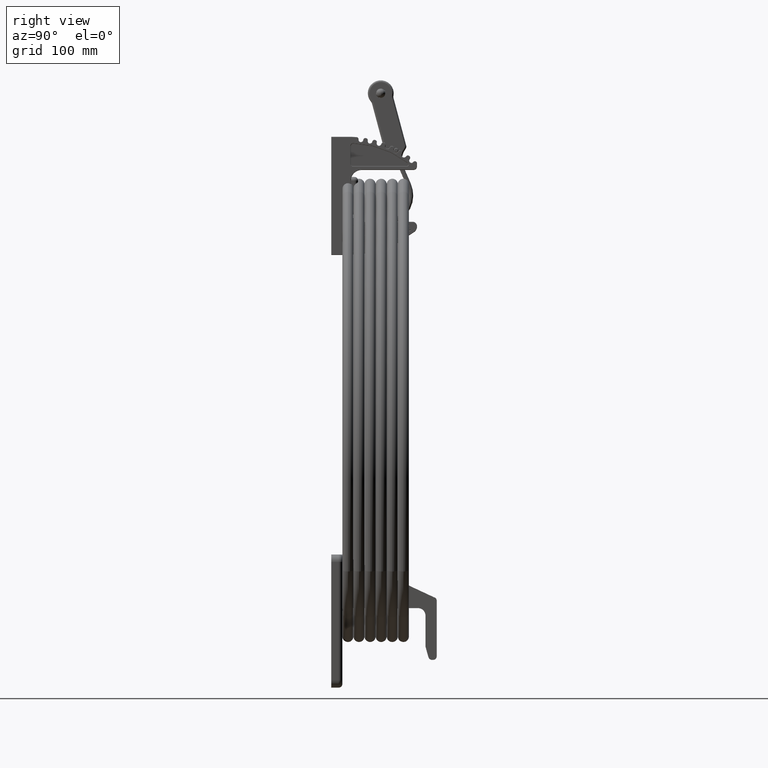
[diagram: clean part render]
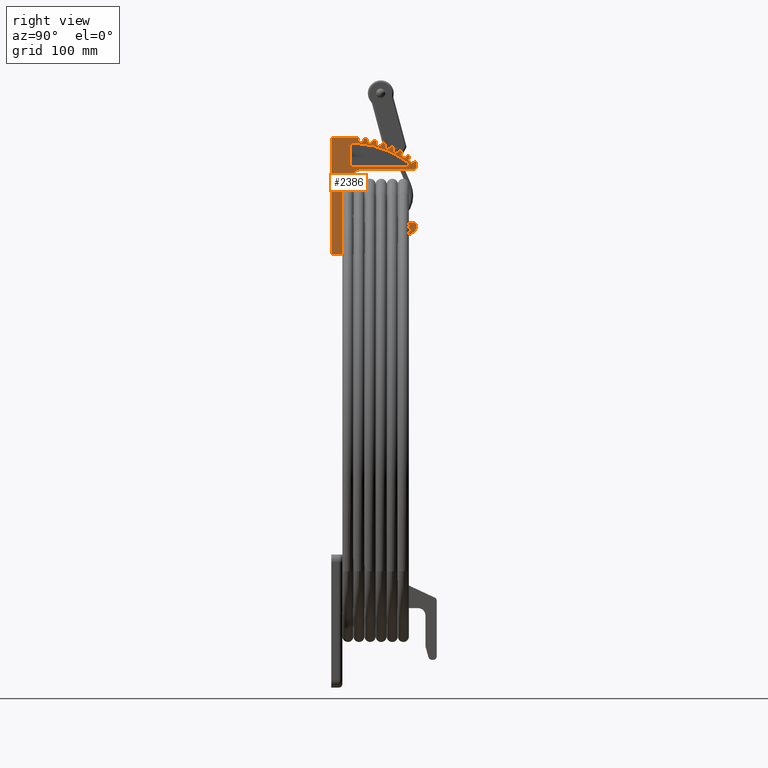
[diagram: same view with one face highlighted and labeled with its STEP entity id]
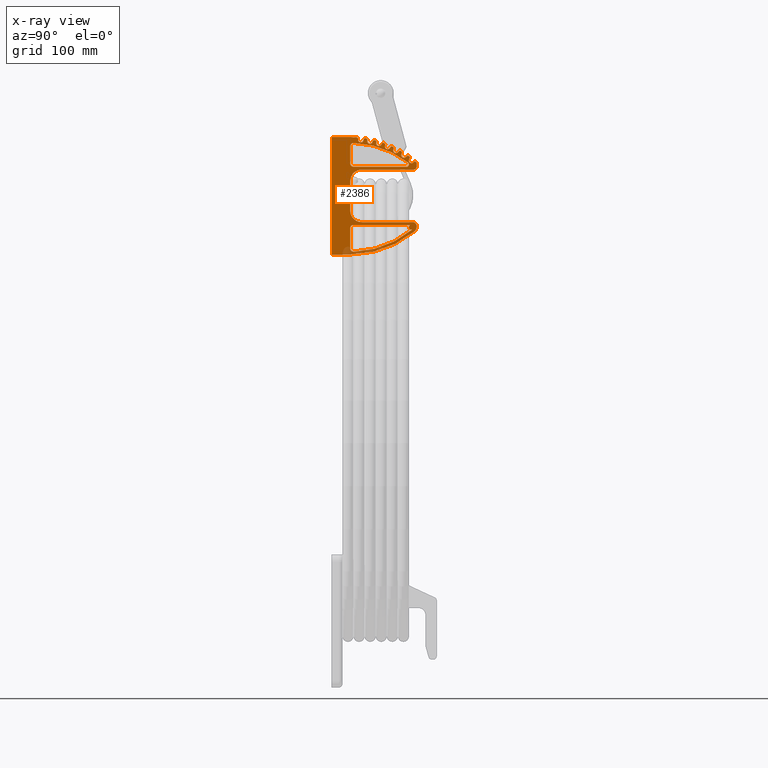
[diagram: x-ray of the same camera — body ghosted, the highlighted face saturated]
A machine part, right view. The second image highlights one B-rep face of the part: STEP entity #2386.
The next image is the same camera in x-ray: the body ghosted, the highlighted face saturated — about 4% of this face is hidden behind the body in this view.
In plain terms, the highlighted planar face has unit normal (-1, 0, 0).
Its self-contained STEP definition (entity closure, byte-faithful):
#2386 = ADVANCED_FACE ( 'NONE', ( #29858, #6729, #6731 ), #31853, .F. ) ;
#6729 = FACE_OUTER_BOUND ( 'NONE', #8327, .T. ) ;
#6731 = FACE_BOUND ( 'NONE', #18009, .T. ) ;
#7121 = ORIENTED_EDGE ( 'NONE', *, *, #8563, .T. ) ;
#7122 = ORIENTED_EDGE ( 'NONE', *, *, #8560, .T. ) ;
#7123 = ORIENTED_EDGE ( 'NONE', *, *, #8562, .T. ) ;
#7124 = ORIENTED_EDGE ( 'NONE', *, *, #8564, .T. ) ;
#7125 = ORIENTED_EDGE ( 'NONE', *, *, #8565, .T. ) ;
#7126 = ORIENTED_EDGE ( 'NONE', *, *, #8566, .T. ) ;
#7127 = ORIENTED_EDGE ( 'NONE', *, *, #8568, .T. ) ;
#7128 = ORIENTED_EDGE ( 'NONE', *, *, #8567, .T. ) ;
#7129 = ORIENTED_EDGE ( 'NONE', *, *, #8570, .T. ) ;
#7130 = ORIENTED_EDGE ( 'NONE', *, *, #8569, .T. ) ;
#7131 = ORIENTED_EDGE ( 'NONE', *, *, #8571, .T. ) ;
#7132 = ORIENTED_EDGE ( 'NONE', *, *, #8572, .T. ) ;
#7656 = ORIENTED_EDGE ( 'NONE', *, *, #8510, .T. ) ;
#7657 = ORIENTED_EDGE ( 'NONE', *, *, #8509, .T. ) ;
#7658 = ORIENTED_EDGE ( 'NONE', *, *, #32658, .T. ) ;
#7659 = ORIENTED_EDGE ( 'NONE', *, *, #8511, .T. ) ;
#7660 = ORIENTED_EDGE ( 'NONE', *, *, #8504, .T. ) ;
#7661 = ORIENTED_EDGE ( 'NONE', *, *, #8505, .T. ) ;
#7662 = ORIENTED_EDGE ( 'NONE', *, *, #8506, .T. ) ;
#7663 = ORIENTED_EDGE ( 'NONE', *, *, #8513, .T. ) ;
#7664 = ORIENTED_EDGE ( 'NONE', *, *, #8512, .T. ) ;
#7665 = ORIENTED_EDGE ( 'NONE', *, *, #8515, .T. ) ;
#7666 = ORIENTED_EDGE ( 'NONE', *, *, #8514, .T. ) ;
#7667 = ORIENTED_EDGE ( 'NONE', *, *, #8516, .T. ) ;
#7668 = ORIENTED_EDGE ( 'NONE', *, *, #8517, .T. ) ;
#7669 = ORIENTED_EDGE ( 'NONE', *, *, #8518, .T. ) ;
#7670 = ORIENTED_EDGE ( 'NONE', *, *, #8519, .T. ) ;
#7671 = ORIENTED_EDGE ( 'NONE', *, *, #8520, .T. ) ;
#7672 = ORIENTED_EDGE ( 'NONE', *, *, #8521, .T. ) ;
#7673 = ORIENTED_EDGE ( 'NONE', *, *, #8522, .T. ) ;
#7674 = ORIENTED_EDGE ( 'NONE', *, *, #8523, .T. ) ;
#7675 = ORIENTED_EDGE ( 'NONE', *, *, #8524, .T. ) ;
#7676 = ORIENTED_EDGE ( 'NONE', *, *, #32644, .T. ) ;
#7677 = ORIENTED_EDGE ( 'NONE', *, *, #8526, .T. ) ;
#7678 = ORIENTED_EDGE ( 'NONE', *, *, #8528, .T. ) ;
#7679 = ORIENTED_EDGE ( 'NONE', *, *, #8525, .T. ) ;
#7680 = ORIENTED_EDGE ( 'NONE', *, *, #8527, .T. ) ;
#7681 = ORIENTED_EDGE ( 'NONE', *, *, #8529, .T. ) ;
#7682 = ORIENTED_EDGE ( 'NONE', *, *, #32652, .T. ) ;
#7683 = ORIENTED_EDGE ( 'NONE', *, *, #8531, .T. ) ;
#7684 = ORIENTED_EDGE ( 'NONE', *, *, #8533, .T. ) ;
#7685 = ORIENTED_EDGE ( 'NONE', *, *, #8530, .T. ) ;
#7686 = ORIENTED_EDGE ( 'NONE', *, *, #8532, .T. ) ;
#7687 = ORIENTED_EDGE ( 'NONE', *, *, #8534, .T. ) ;
#7688 = ORIENTED_EDGE ( 'NONE', *, *, #8535, .T. ) ;
#7689 = ORIENTED_EDGE ( 'NONE', *, *, #32660, .T. ) ;
#7690 = ORIENTED_EDGE ( 'NONE', *, *, #8537, .T. ) ;
#7691 = ORIENTED_EDGE ( 'NONE', *, *, #8539, .T. ) ;
#7692 = ORIENTED_EDGE ( 'NONE', *, *, #8536, .T. ) ;
#7693 = ORIENTED_EDGE ( 'NONE', *, *, #8538, .T. ) ;
#7694 = ORIENTED_EDGE ( 'NONE', *, *, #8540, .T. ) ;
#7695 = ORIENTED_EDGE ( 'NONE', *, *, #8541, .T. ) ;
#7696 = ORIENTED_EDGE ( 'NONE', *, *, #32664, .T. ) ;
#7697 = ORIENTED_EDGE ( 'NONE', *, *, #8543, .T. ) ;
#7698 = ORIENTED_EDGE ( 'NONE', *, *, #8545, .T. ) ;
#7699 = ORIENTED_EDGE ( 'NONE', *, *, #8542, .T. ) ;
#7700 = ORIENTED_EDGE ( 'NONE', *, *, #8544, .T. ) ;
#7701 = ORIENTED_EDGE ( 'NONE', *, *, #8546, .T. ) ;
#7702 = ORIENTED_EDGE ( 'NONE', *, *, #8547, .T. ) ;
#7703 = ORIENTED_EDGE ( 'NONE', *, *, #32656, .T. ) ;
#7704 = ORIENTED_EDGE ( 'NONE', *, *, #8549, .T. ) ;
#7705 = ORIENTED_EDGE ( 'NONE', *, *, #8551, .T. ) ;
#7706 = ORIENTED_EDGE ( 'NONE', *, *, #8548, .T. ) ;
#7707 = ORIENTED_EDGE ( 'NONE', *, *, #8550, .T. ) ;
#7708 = ORIENTED_EDGE ( 'NONE', *, *, #8552, .T. ) ;
#7709 = ORIENTED_EDGE ( 'NONE', *, *, #8553, .T. ) ;
#7710 = ORIENTED_EDGE ( 'NONE', *, *, #32648, .T. ) ;
#7711 = ORIENTED_EDGE ( 'NONE', *, *, #8555, .T. ) ;
#7712 = ORIENTED_EDGE ( 'NONE', *, *, #8557, .T. ) ;
#7713 = ORIENTED_EDGE ( 'NONE', *, *, #8554, .T. ) ;
#7714 = ORIENTED_EDGE ( 'NONE', *, *, #8556, .T. ) ;
#7715 = ORIENTED_EDGE ( 'NONE', *, *, #8558, .T. ) ;
#7716 = ORIENTED_EDGE ( 'NONE', *, *, #8559, .T. ) ;
#7717 = ORIENTED_EDGE ( 'NONE', *, *, #32639, .T. ) ;
#7718 = ORIENTED_EDGE ( 'NONE', *, *, #8561, .T. ) ;
#8327 = EDGE_LOOP ( 'NONE', ( #7663, #7664, #7665, #7666, #7667, #7668, #7669, #7670, #7671, #7672, #7673, #7674, #7675, #7676, #7677, #7678, #7679, #7680, #7681, #7682, #7683, #7684, #7685, #7686, #7687, #7688, #7689, #7690, #7691, #7692, #7693, #7694, #7695, #7696, #7697, #7698, #7699, #7700, #7701, #7702, #7703, #7704, #7705, #7706, #7707, #7708, #7709, #7710, #7711, #7712, #7713, #7714, #7715, #7716, #7717, #7718, #7121, #7122, #7123, #7124, #7125, #7126 ) ) ;
#8504 = EDGE_CURVE ( 'NONE', #31783, #23005, #19197, .T. ) ;
#8505 = EDGE_CURVE ( 'NONE', #23005, #31934, #19198, .T. ) ;
#8506 = EDGE_CURVE ( 'NONE', #31934, #31825, #19196, .T. ) ;
#8509 = EDGE_CURVE ( 'NONE', #31779, #23078, #19187, .T. ) ;
#8510 = EDGE_CURVE ( 'NONE', #31825, #31779, #19204, .T. ) ;
#8511 = EDGE_CURVE ( 'NONE', #23066, #31783, #19206, .T. ) ;
#8512 = EDGE_CURVE ( 'NONE', #32078, #31767, #19208, .T. ) ;
#8513 = EDGE_CURVE ( 'NONE', #23007, #32078, #19207, .T. ) ;
#8514 = EDGE_CURVE ( 'NONE', #32055, #31861, #19209, .T. ) ;
#8515 = EDGE_CURVE ( 'NONE', #31767, #32055, #19213, .T. ) ;
#8516 = EDGE_CURVE ( 'NONE', #31861, #31792, #19215, .T. ) ;
#8517 = EDGE_CURVE ( 'NONE', #31792, #32089, #19205, .T. ) ;
#8518 = EDGE_CURVE ( 'NONE', #32089, #32085, #19218, .T. ) ;
#8519 = EDGE_CURVE ( 'NONE', #32085, #31812, #19211, .T. ) ;
#8520 = EDGE_CURVE ( 'NONE', #31812, #32020, #19220, .T. ) ;
#8521 = EDGE_CURVE ( 'NONE', #32020, #32018, #19201, .T. ) ;
#8522 = EDGE_CURVE ( 'NONE', #32018, #32015, #19222, .T. ) ;
#8523 = EDGE_CURVE ( 'NONE', #32015, #32026, #19216, .T. ) ;
#8524 = EDGE_CURVE ( 'NONE', #32026, #31975, #19224, .T. ) ;
#8525 = EDGE_CURVE ( 'NONE', #32029, #32034, #19226, .T. ) ;
#8526 = EDGE_CURVE ( 'NONE', #31800, #32042, #19228, .T. ) ;
#8527 = EDGE_CURVE ( 'NONE', #32034, #32044, #19223, .T. ) ;
#8528 = EDGE_CURVE ( 'NONE', #32042, #32029, #19229, .T. ) ;
#8529 = EDGE_CURVE ( 'NONE', #32044, #31818, #19232, .T. ) ;
#8530 = EDGE_CURVE ( 'NONE', #31999, #32011, #19221, .T. ) ;
#8531 = EDGE_CURVE ( 'NONE', #32082, #32046, #19233, .T. ) ;
#8532 = EDGE_CURVE ( 'NONE', #32011, #32008, #19237, .T. ) ;
#8533 = EDGE_CURVE ( 'NONE', #32046, #31999, #19239, .T. ) ;
#8534 = EDGE_CURVE ( 'NONE', #32008, #32002, #19231, .T. ) ;
#8535 = EDGE_CURVE ( 'NONE', #32002, #31900, #19241, .T. ) ;
#8536 = EDGE_CURVE ( 'NONE', #32000, #31998, #19235, .T. ) ;
#8537 = EDGE_CURVE ( 'NONE', #31899, #32001, #19242, .T. ) ;
#8538 = EDGE_CURVE ( 'NONE', #31998, #31970, #19246, .T. ) ;
#8539 = EDGE_CURVE ( 'NONE', #32001, #32000, #19248, .T. ) ;
#8540 = EDGE_CURVE ( 'NONE', #31970, #31960, #19240, .T. ) ;
#8541 = EDGE_CURVE ( 'NONE', #31960, #23084, #19250, .T. ) ;
#8542 = EDGE_CURVE ( 'NONE', #22938, #22939, #19244, .T. ) ;
#8543 = EDGE_CURVE ( 'NONE', #23101, #31991, #19251, .T. ) ;
#8544 = EDGE_CURVE ( 'NONE', #22939, #22946, #19255, .T. ) ;
#8545 = EDGE_CURVE ( 'NONE', #31991, #22938, #19257, .T. ) ;
#8546 = EDGE_CURVE ( 'NONE', #22946, #22950, #19249, .T. ) ;
#8547 = EDGE_CURVE ( 'NONE', #22950, #31957, #19259, .T. ) ;
#8548 = EDGE_CURVE ( 'NONE', #22958, #32075, #19253, .T. ) ;
#8549 = EDGE_CURVE ( 'NONE', #22941, #31863, #19260, .T. ) ;
#8550 = EDGE_CURVE ( 'NONE', #32075, #23138, #19264, .T. ) ;
#8551 = EDGE_CURVE ( 'NONE', #31863, #22958, #19266, .T. ) ;
#8552 = EDGE_CURVE ( 'NONE', #23138, #23100, #19258, .T. ) ;
#8553 = EDGE_CURVE ( 'NONE', #23100, #23186, #19268, .T. ) ;
#8554 = EDGE_CURVE ( 'NONE', #31935, #31813, #19262, .T. ) ;
#8555 = EDGE_CURVE ( 'NONE', #23189, #31954, #19269, .T. ) ;
#8556 = EDGE_CURVE ( 'NONE', #31813, #32052, #19273, .T. ) ;
#8557 = EDGE_CURVE ( 'NONE', #31954, #31935, #19275, .T. ) ;
#8558 = EDGE_CURVE ( 'NONE', #32052, #32027, #19267, .T. ) ;
#8559 = EDGE_CURVE ( 'NONE', #32027, #23115, #19278, .T. ) ;
#8560 = EDGE_CURVE ( 'NONE', #22954, #22935, #19271, .T. ) ;
#8561 = EDGE_CURVE ( 'NONE', #23080, #22944, #19279, .T. ) ;
#8562 = EDGE_CURVE ( 'NONE', #22935, #22953, #19283, .T. ) ;
#8563 = EDGE_CURVE ( 'NONE', #22944, #22954, #19285, .T. ) ;
#8564 = EDGE_CURVE ( 'NONE', #22953, #23129, #19276, .T. ) ;
#8565 = EDGE_CURVE ( 'NONE', #23129, #23099, #19286, .T. ) ;
#8566 = EDGE_CURVE ( 'NONE', #23099, #23007, #19288, .T. ) ;
#8567 = EDGE_CURVE ( 'NONE', #23190, #23004, #19291, .T. ) ;
#8568 = EDGE_CURVE ( 'NONE', #31967, #23190, #19290, .T. ) ;
#8569 = EDGE_CURVE ( 'NONE', #22947, #22933, #19294, .T. ) ;
#8570 = EDGE_CURVE ( 'NONE', #23004, #22947, #19296, .T. ) ;
#8571 = EDGE_CURVE ( 'NONE', #22933, #22959, #19284, .T. ) ;
#8572 = EDGE_CURVE ( 'NONE', #22959, #31967, #19298, .T. ) ;
#8707 = AXIS2_PLACEMENT_3D ( 'NONE', #31852, #31854, #31855 ) ;
#13748 = CIRCLE ( 'NONE', #25385, 0.05237500000000301600 ) ;
#13753 = CIRCLE ( 'NONE', #25387, 0.05237500000004972900 ) ;
#13757 = CIRCLE ( 'NONE', #25390, 0.05237500000000137900 ) ;
#13761 = CIRCLE ( 'NONE', #25396, 0.05237500000000164900 ) ;
#13765 = CIRCLE ( 'NONE', #25398, 0.05237500000000274600 ) ;
#13767 = CIRCLE ( 'NONE', #25402, 0.1093749999999997100 ) ;
#13769 = CIRCLE ( 'NONE', #25404, 0.05237500000000110100 ) ;
#13773 = CIRCLE ( 'NONE', #25406, 0.05237500000000001200 ) ;
#15521 = CARTESIAN_POINT ( 'NONE',  ( -1.203720899660979600, 2.806549910696568300, -0.9375000000000000000 ) ) ;
#15523 = CARTESIAN_POINT ( 'NONE',  ( 1.093331482120399200, 0.6403749999999964700, -0.9375000000000000000 ) ) ;
#15527 = CARTESIAN_POINT ( 'NONE',  ( 1.786008729839619200, 0.7531084953940613300, -0.9375000000000000000 ) ) ;
#15536 = CARTESIAN_POINT ( 'NONE',  ( -0.8906249999999998900, 2.754999999999996300, -0.9375000000000000000 ) ) ;
#15544 = CARTESIAN_POINT ( 'NONE',  ( 1.138491111598765000, 2.785150776654450800, -0.9375000000000000000 ) ) ;
#15558 = CARTESIAN_POINT ( 'NONE',  ( 0.4999999999999929500, 0.6403749999999964700, -0.9375000000000000000 ) ) ;
#15559 = CARTESIAN_POINT ( 'NONE',  ( 1.879093312506802600, 1.217277654157739900, -0.9375000000000000000 ) ) ;
#15565 = CARTESIAN_POINT ( 'NONE',  ( 1.354437124243129500, 2.586139086858479700, -0.9375000000000000000 ) ) ;
#15573 = CARTESIAN_POINT ( 'NONE',  ( 0.9839564821203992100, 0.7497499999999965900, -0.9375000000000000000 ) ) ;
#15585 = CARTESIAN_POINT ( 'NONE',  ( -1.015000000000002100, 2.879374999999998200, -0.9375000000000000000 ) ) ;
#15587 = CARTESIAN_POINT ( 'NONE',  ( 1.731529941842940800, 1.695101892409042200, -0.9375000000000000000 ) ) ;
#15601 = CARTESIAN_POINT ( 'NONE',  ( 1.504751721501961000, 2.282007363495264700, -0.9375000000000000000 ) ) ;
#15602 = CARTESIAN_POINT ( 'NONE',  ( 1.525363295958505700, 2.323651395753745700, -0.9375000000000000000 ) ) ;
#15635 = CARTESIAN_POINT ( 'NONE',  ( 0.9839564821204057600, 2.546503369510575900, -0.9375000000000000000 ) ) ;
#15636 = CARTESIAN_POINT ( 'NONE',  ( 1.866368284237268000, 1.216147167264870500, -0.9375000000000000000 ) ) ;
#15653 = CARTESIAN_POINT ( 'NONE',  ( 1.816048512385185300, 1.395912436697071400, -0.9375000000000000000 ) ) ;
#15656 = CARTESIAN_POINT ( 'NONE',  ( 1.788943379252361900, 1.756109418609299600, -0.9375000000000000000 ) ) ;
#15659 = CARTESIAN_POINT ( 'NONE',  ( 1.664919517442953400, 2.069932792585167400, -0.9375000000000000000 ) ) ;
#15666 = CARTESIAN_POINT ( 'NONE',  ( -0.9843749999999991100, 0.7497499999999965900, -0.9375000000000000000 ) ) ;
#15669 = CARTESIAN_POINT ( 'NONE',  ( 1.659340808302397700, 2.081493513986589800, -0.9375000000000000000 ) ) ;
#16758 = CARTESIAN_POINT ( 'NONE',  ( 1.159373523099561200, 2.826999999999954700, -0.9375000000000000000 ) ) ;
#16774 = CARTESIAN_POINT ( 'NONE',  ( 1.619027886266771300, 1.984931163992957700, -0.9375000000000000000 ) ) ;
#16781 = CARTESIAN_POINT ( 'NONE',  ( 1.590256994160319300, 2.109068081729710700, -0.9375000000000000000 ) ) ;
#16782 = CARTESIAN_POINT ( 'NONE',  ( 1.427746647115024600, 2.377872363196417800, -0.9375000000000000000 ) ) ;
#16783 = CARTESIAN_POINT ( 'NONE',  ( 1.578362360885893200, 2.104407390327947400, -0.9375000000000000000 ) ) ;
#16784 = CARTESIAN_POINT ( 'NONE',  ( 1.479555759223405900, 2.262789482122402600, -0.9375000000000000000 ) ) ;
#16785 = CARTESIAN_POINT ( 'NONE',  ( 1.517182258592241900, 2.351758944414731100, -0.9375000000000000000 ) ) ;
#16791 = CARTESIAN_POINT ( 'NONE',  ( 1.510532681021735900, 2.362738716412843100, -0.9375000000000000000 ) ) ;
#16794 = CARTESIAN_POINT ( 'NONE',  ( 1.439145858187240900, 2.383639713715194600, -0.9375000000000000000 ) ) ;
#16798 = CARTESIAN_POINT ( 'NONE',  ( 0.9843749999999973400, 2.879374999999996000, -0.9375000000000000000 ) ) ;
#16801 = CARTESIAN_POINT ( 'NONE',  ( 0.8906249999999976700, 2.785624999999997800, -0.9375000000000000000 ) ) ;
#16803 = CARTESIAN_POINT ( 'NONE',  ( 0.8906249999999933400, 1.030999999999996800, -0.9375000000000000000 ) ) ;
#16809 = CARTESIAN_POINT ( 'NONE',  ( 1.106998523099511600, 2.879375000000004500, -0.9375000000000000000 ) ) ;
#16810 = CARTESIAN_POINT ( 'NONE',  ( 1.939750394486898300, 1.158738934962493700, -0.9375000000000000000 ) ) ;
#16812 = CARTESIAN_POINT ( 'NONE',  ( 1.262685020141402200, 2.642648843172836800, -0.9375000000000000000 ) ) ;
#16817 = CARTESIAN_POINT ( 'NONE',  ( 1.335731802309121400, 2.628609691575352100, -0.9375000000000000000 ) ) ;
#16825 = CARTESIAN_POINT ( 'NONE',  ( 1.251883914863207500, 2.635826785576783000, -0.9375000000000000000 ) ) ;
#16827 = CARTESIAN_POINT ( 'NONE',  ( 1.343392349207376300, 2.618309774283626500, -0.9375000000000000000 ) ) ;
#16829 = CARTESIAN_POINT ( 'NONE',  ( 1.314369919496718400, 2.526173911292999300, -0.9375000000000000000 ) ) ;
#16835 = CARTESIAN_POINT ( 'NONE',  ( 1.937645049490148000, 1.171401470152637600, -0.9375000000000000000 ) ) ;
#16838 = CARTESIAN_POINT ( 'NONE',  ( -1.047895038850052100, 2.879374999999998700, -0.9375000000000000000 ) ) ;
#16858 = CARTESIAN_POINT ( 'NONE',  ( 1.811225960684190100, 1.523248533593722900, -0.9375000000000000000 ) ) ;
#16861 = CARTESIAN_POINT ( 'NONE',  ( -1.984375000000003300, 0.6559999999999969200, -0.9375000000000000000 ) ) ;
#16865 = CARTESIAN_POINT ( 'NONE',  ( 1.337630480686919700, 2.547693896718651500, -0.9375000000000000000 ) ) ;
#16868 = CARTESIAN_POINT ( 'NONE',  ( -0.5000000000000018900, 0.6403749999999964700, -0.9375000000000000000 ) ) ;
#16872 = CARTESIAN_POINT ( 'NONE',  ( -0.8906250000000021100, 1.030999999999996800, -0.9375000000000000000 ) ) ;
#17392 = CARTESIAN_POINT ( 'NONE',  ( 1.888285461157790600, 1.149017758982576500, -0.9375000000000000000 ) ) ;
#17417 = DIRECTION ( 'NONE',  ( -0.0000000000000000000, -0.0000000000000000000, -1.000000000000000000 ) ) ;
#17418 = DIRECTION ( 'NONE',  ( 1.000000000000000000, 0.0000000000000000000, 0.0000000000000000000 ) ) ;
#17431 = CARTESIAN_POINT ( 'NONE',  ( 1.106998523099511600, 2.826999999999954700, -0.9375000000000000000 ) ) ;
#17433 = DIRECTION ( 'NONE',  ( -0.0000000000000000000, -0.0000000000000000000, -1.000000000000000000 ) ) ;
#17434 = DIRECTION ( 'NONE',  ( 1.000000000000000000, 0.0000000000000000000, 0.0000000000000000000 ) ) ;
#17443 = CARTESIAN_POINT ( 'NONE',  ( 1.826847973037622800, 1.456167525728793400, -0.9375000000000000000 ) ) ;
#17444 = DIRECTION ( 'NONE',  ( -0.0000000000000000000, -0.0000000000000000000, -1.000000000000000000 ) ) ;
#17445 = DIRECTION ( 'NONE',  ( 1.000000000000000000, 0.0000000000000000000, 0.0000000000000000000 ) ) ;
#17455 = CARTESIAN_POINT ( 'NONE',  ( 1.302062124243127800, 2.586139086858479700, -0.9375000000000000000 ) ) ;
#17457 = DIRECTION ( 'NONE',  ( -0.0000000000000000000, -0.0000000000000000000, -1.000000000000000000 ) ) ;
#17458 = DIRECTION ( 'NONE',  ( 1.000000000000000000, 0.0000000000000000000, 0.0000000000000000000 ) ) ;
#17467 = CARTESIAN_POINT ( 'NONE',  ( 1.736568379252359200, 1.756109418609299600, -0.9375000000000000000 ) ) ;
#17468 = DIRECTION ( 'NONE',  ( -0.0000000000000000000, -0.0000000000000000000, -1.000000000000000000 ) ) ;
#17469 = DIRECTION ( 'NONE',  ( 1.000000000000000000, 0.0000000000000000000, 0.0000000000000000000 ) ) ;
#17473 = CARTESIAN_POINT ( 'NONE',  ( 1.676685305388644600, 0.7497499999999965900, -0.9375000000000000000 ) ) ;
#17474 = DIRECTION ( 'NONE',  ( 0.0000000000000000000, 0.0000000000000000000, 1.000000000000000000 ) ) ;
#17475 = DIRECTION ( 'NONE',  ( 1.000000000000000000, 0.0000000000000000000, 0.0000000000000000000 ) ) ;
#17479 = CARTESIAN_POINT ( 'NONE',  ( 1.472988295958504600, 2.323651395753745700, -0.9375000000000000000 ) ) ;
#17481 = DIRECTION ( 'NONE',  ( -0.0000000000000000000, -0.0000000000000000000, -1.000000000000000000 ) ) ;
#17482 = DIRECTION ( 'NONE',  ( 1.000000000000000000, 0.0000000000000000000, 0.0000000000000000000 ) ) ;
#17491 = CARTESIAN_POINT ( 'NONE',  ( 1.618259914410683100, 2.046141574249977300, -0.9375000000000000000 ) ) ;
#17492 = DIRECTION ( 'NONE',  ( -0.0000000000000000000, -0.0000000000000000000, -1.000000000000000000 ) ) ;
#17493 = DIRECTION ( 'NONE',  ( 1.000000000000000000, 0.0000000000000000000, 0.0000000000000000000 ) ) ;
#18009 = EDGE_LOOP ( 'NONE', ( #7127, #7128, #7129, #7130, #7131, #7132 ) ) ;
#18343 = EDGE_LOOP ( 'NONE', ( #7656, #7657, #7658, #7659, #7660, #7661, #7662 ) ) ;
#19167 = VECTOR ( 'NONE', #33445, 39.37007874015748100 ) ;
#19187 = LINE ( 'NONE', #33452, #19199 ) ;
#19196 = LINE ( 'NONE', #33444, #19167 ) ;
#19197 = CIRCLE ( 'NONE', #28653, 3.162499999999998300 ) ;
#19198 = CIRCLE ( 'NONE', #28654, 0.07812499999999644700 ) ;
#19199 = VECTOR ( 'NONE', #33453, 39.37007874015748100 ) ;
#19201 = LINE ( 'NONE', #33483, #19217 ) ;
#19203 = VECTOR ( 'NONE', #33464, 39.37007874015748100 ) ;
#19204 = CIRCLE ( 'NONE', #28657, 0.1093750000000001100 ) ;
#19205 = LINE ( 'NONE', #33473, #19212 ) ;
#19206 = CIRCLE ( 'NONE', #28656, 0.1093749999999997100 ) ;
#19207 = LINE ( 'NONE', #33457, #19203 ) ;
#19208 = CIRCLE ( 'NONE', #28658, 3.352500000000000000 ) ;
#19209 = LINE ( 'NONE', #33465, #19210 ) ;
#19210 = VECTOR ( 'NONE', #33466, 39.37007874015748100 ) ;
#19211 = LINE ( 'NONE', #33478, #19214 ) ;
#19212 = VECTOR ( 'NONE', #33474, 39.37007874015748100 ) ;
#19213 = CIRCLE ( 'NONE', #28652, 0.2031250000000044100 ) ;
#19214 = VECTOR ( 'NONE', #33479, 39.37007874015748100 ) ;
#19215 = CIRCLE ( 'NONE', #28660, 0.1243750000000022800 ) ;
#19216 = LINE ( 'NONE', #33488, #19219 ) ;
#19217 = VECTOR ( 'NONE', #33484, 39.37007874015748100 ) ;
#19218 = CIRCLE ( 'NONE', #28662, 0.3906250000000002200 ) ;
#19219 = VECTOR ( 'NONE', #33489, 39.37007874015748100 ) ;
#19220 = CIRCLE ( 'NONE', #28663, 0.3906250000000001700 ) ;
#19221 = LINE ( 'NONE', #33506, #19227 ) ;
#19222 = CIRCLE ( 'NONE', #28664, 0.09374999999999855700 ) ;
#19223 = LINE ( 'NONE', #33499, #19225 ) ;
#19224 = CIRCLE ( 'NONE', #28665, 0.05237500000004972900 ) ;
#19225 = VECTOR ( 'NONE', #33500, 39.37007874015748100 ) ;
#19226 = CIRCLE ( 'NONE', #28661, 0.05437499999999469100 ) ;
#19227 = VECTOR ( 'NONE', #33507, 39.37007874015748100 ) ;
#19228 = CIRCLE ( 'NONE', #28666, 0.09375000000000470500 ) ;
#19229 = LINE ( 'NONE', #33501, #19230 ) ;
#19230 = VECTOR ( 'NONE', #33502, 39.37007874015748100 ) ;
#19231 = LINE ( 'NONE', #33516, #19236 ) ;
#19232 = CIRCLE ( 'NONE', #28667, 0.05237500000000164900 ) ;
#19233 = LINE ( 'NONE', #33508, #19234 ) ;
#19234 = VECTOR ( 'NONE', #33509, 39.37007874015748900 ) ;
#19235 = LINE ( 'NONE', #33521, #19238 ) ;
#19236 = VECTOR ( 'NONE', #33517, 39.37007874015748100 ) ;
#19237 = CIRCLE ( 'NONE', #28668, 0.05437499999999632900 ) ;
#19238 = VECTOR ( 'NONE', #33522, 39.37007874015747400 ) ;
#19239 = CIRCLE ( 'NONE', #28669, 0.09375000000000087400 ) ;
#19240 = LINE ( 'NONE', #33531, #19245 ) ;
#19241 = CIRCLE ( 'NONE', #28671, 0.05237500000000110100 ) ;
#19242 = LINE ( 'NONE', #33523, #19243 ) ;
#19243 = VECTOR ( 'NONE', #33524, 39.37007874015748100 ) ;
#19244 = LINE ( 'NONE', #33536, #19247 ) ;
#19245 = VECTOR ( 'NONE', #33532, 39.37007874015747400 ) ;
#19246 = CIRCLE ( 'NONE', #28670, 0.05437499999999742500 ) ;
#19247 = VECTOR ( 'NONE', #33537, 39.37007874015748900 ) ;
#19248 = CIRCLE ( 'NONE', #28672, 0.09374999999999895900 ) ;
#19249 = LINE ( 'NONE', #33546, #19254 ) ;
#19250 = CIRCLE ( 'NONE', #28674, 0.05237500000000001200 ) ;
#19251 = LINE ( 'NONE', #33538, #19252 ) ;
#19252 = VECTOR ( 'NONE', #33539, 39.37007874015748900 ) ;
#19253 = LINE ( 'NONE', #33551, #19256 ) ;
#19254 = VECTOR ( 'NONE', #33547, 39.37007874015748100 ) ;
#19255 = CIRCLE ( 'NONE', #28673, 0.05437499999999933400 ) ;
#19256 = VECTOR ( 'NONE', #33552, 39.37007874015748100 ) ;
#19257 = CIRCLE ( 'NONE', #28675, 0.09374999999999951400 ) ;
#19258 = LINE ( 'NONE', #33561, #19263 ) ;
#19259 = CIRCLE ( 'NONE', #28677, 0.05237500000000274600 ) ;
#19260 = LINE ( 'NONE', #33553, #19261 ) ;
#19261 = VECTOR ( 'NONE', #33554, 39.37007874015748100 ) ;
#19262 = LINE ( 'NONE', #33566, #19265 ) ;
#19263 = VECTOR ( 'NONE', #33562, 39.37007874015748900 ) ;
#19264 = CIRCLE ( 'NONE', #28676, 0.05437500000000233800 ) ;
#19265 = VECTOR ( 'NONE', #33567, 39.37007874015748900 ) ;
#19266 = CIRCLE ( 'NONE', #28678, 0.09375000000000197100 ) ;
#19267 = LINE ( 'NONE', #33576, #19272 ) ;
#19268 = CIRCLE ( 'NONE', #28680, 0.05237500000000137900 ) ;
#19269 = LINE ( 'NONE', #33568, #19270 ) ;
#19270 = VECTOR ( 'NONE', #33569, 39.37007874015748100 ) ;
#19271 = LINE ( 'NONE', #33581, #19274 ) ;
#19272 = VECTOR ( 'NONE', #33577, 39.37007874015748900 ) ;
#19273 = CIRCLE ( 'NONE', #28679, 0.05437500000000480100 ) ;
#19274 = VECTOR ( 'NONE', #33582, 39.37007874015748100 ) ;
#19275 = CIRCLE ( 'NONE', #28681, 0.09375000000000005600 ) ;
#19276 = LINE ( 'NONE', #33591, #19282 ) ;
#19278 = CIRCLE ( 'NONE', #28683, 0.05237500000000301600 ) ;
#19279 = LINE ( 'NONE', #33583, #19280 ) ;
#19280 = VECTOR ( 'NONE', #33584, 39.37007874015748100 ) ;
#19281 = VECTOR ( 'NONE', #33601, 39.37007874015748100 ) ;
#19282 = VECTOR ( 'NONE', #33592, 39.37007874015748100 ) ;
#19283 = CIRCLE ( 'NONE', #28682, 0.05437500000000124900 ) ;
#19284 = LINE ( 'NONE', #33607, #19293 ) ;
#19285 = CIRCLE ( 'NONE', #28684, 0.09374999999999759900 ) ;
#19286 = LINE ( 'NONE', #33593, #19287 ) ;
#19287 = VECTOR ( 'NONE', #33594, 39.37007874015748100 ) ;
#19288 = LINE ( 'NONE', #33595, #19289 ) ;
#19289 = VECTOR ( 'NONE', #33596, 39.37007874015748100 ) ;
#19290 = LINE ( 'NONE', #33588, #19281 ) ;
#19291 = CIRCLE ( 'NONE', #28686, 0.08583975998035206500 ) ;
#19293 = VECTOR ( 'NONE', #33608, 39.37007874015748100 ) ;
#19294 = CIRCLE ( 'NONE', #28687, 0.1093750000000002500 ) ;
#19296 = CIRCLE ( 'NONE', #28659, 3.258749999999997400 ) ;
#19298 = CIRCLE ( 'NONE', #28689, 0.1093750000000001100 ) ;
#20910 = CARTESIAN_POINT ( 'NONE',  ( -1.779854324602530200, 0.6403749999999964700, -0.9375000000000000000 ) ) ;
#20912 = CARTESIAN_POINT ( 'NONE',  ( 1.917647934945111000, 0.9062508103083918300, -0.9375000000000000000 ) ) ;
#20915 = CARTESIAN_POINT ( 'NONE',  ( 1.702374316452987600, 1.817895227414952200, -0.9375000000000000000 ) ) ;
#20916 = CARTESIAN_POINT ( 'NONE',  ( 1.714657225596421000, 1.821407276396608300, -0.9375000000000000000 ) ) ;
#20918 = CARTESIAN_POINT ( 'NONE',  ( 1.759900424414289300, 1.709218520840521900, -0.9375000000000000000 ) ) ;
#20921 = CARTESIAN_POINT ( 'NONE',  ( 1.871822258328757600, 1.090057882310262500, -0.9375000000000000000 ) ) ;
#20923 = CARTESIAN_POINT ( 'NONE',  ( 1.780815727087868000, 1.787407528705713800, -0.9375000000000000000 ) ) ;
#20924 = CARTESIAN_POINT ( 'NONE',  ( -1.889180854034054400, 0.7530058543361782800, -0.9375000000000000000 ) ) ;
#20927 = CARTESIAN_POINT ( 'NONE',  ( 1.785273315032001300, 1.775369996370699700, -0.9375000000000000000 ) ) ;
#20930 = CARTESIAN_POINT ( 'NONE',  ( 1.971586479835693500, 0.8550348529202715900, -0.9375000000000000000 ) ) ;
#20931 = CARTESIAN_POINT ( 'NONE',  ( 1.904873046008127600, 0.9063317900776969300, -0.9375000000000000000 ) ) ;
#20935 = CARTESIAN_POINT ( 'NONE',  ( 1.798665419576877600, 1.520916763414871900, -0.9375000000000000000 ) ) ;
#20936 = CARTESIAN_POINT ( 'NONE',  ( -1.093749999999999300, 0.6403749999999962500, -0.9375000000000000000 ) ) ;
#22933 = VERTEX_POINT ( 'NONE', #20910 ) ;
#22935 = VERTEX_POINT ( 'NONE', #20912 ) ;
#22938 = VERTEX_POINT ( 'NONE', #20915 ) ;
#22939 = VERTEX_POINT ( 'NONE', #20916 ) ;
#22941 = VERTEX_POINT ( 'NONE', #20918 ) ;
#22944 = VERTEX_POINT ( 'NONE', #20921 ) ;
#22946 = VERTEX_POINT ( 'NONE', #20923 ) ;
#22947 = VERTEX_POINT ( 'NONE', #20924 ) ;
#22950 = VERTEX_POINT ( 'NONE', #20927 ) ;
#22953 = VERTEX_POINT ( 'NONE', #20930 ) ;
#22954 = VERTEX_POINT ( 'NONE', #20931 ) ;
#22958 = VERTEX_POINT ( 'NONE', #20935 ) ;
#22959 = VERTEX_POINT ( 'NONE', #20936 ) ;
#23004 = VERTEX_POINT ( 'NONE', #26929 ) ;
#23005 = VERTEX_POINT ( 'NONE', #26930 ) ;
#23007 = VERTEX_POINT ( 'NONE', #26932 ) ;
#23066 = VERTEX_POINT ( 'NONE', #26991 ) ;
#23078 = VERTEX_POINT ( 'NONE', #27003 ) ;
#23080 = VERTEX_POINT ( 'NONE', #27005 ) ;
#23084 = VERTEX_POINT ( 'NONE', #27009 ) ;
#23099 = VERTEX_POINT ( 'NONE', #27024 ) ;
#23100 = VERTEX_POINT ( 'NONE', #27025 ) ;
#23101 = VERTEX_POINT ( 'NONE', #27026 ) ;
#23115 = VERTEX_POINT ( 'NONE', #27039 ) ;
#23129 = VERTEX_POINT ( 'NONE', #27052 ) ;
#23138 = VERTEX_POINT ( 'NONE', #27061 ) ;
#23186 = VERTEX_POINT ( 'NONE', #27109 ) ;
#23189 = VERTEX_POINT ( 'NONE', #27112 ) ;
#23190 = VERTEX_POINT ( 'NONE', #27113 ) ;
#25385 = AXIS2_PLACEMENT_3D ( 'NONE', #17392, #17417, #17418 ) ;
#25387 = AXIS2_PLACEMENT_3D ( 'NONE', #17431, #17433, #17434 ) ;
#25390 = AXIS2_PLACEMENT_3D ( 'NONE', #17443, #17444, #17445 ) ;
#25396 = AXIS2_PLACEMENT_3D ( 'NONE', #17455, #17457, #17458 ) ;
#25398 = AXIS2_PLACEMENT_3D ( 'NONE', #17467, #17468, #17469 ) ;
#25402 = AXIS2_PLACEMENT_3D ( 'NONE', #17473, #17474, #17475 ) ;
#25404 = AXIS2_PLACEMENT_3D ( 'NONE', #17479, #17481, #17482 ) ;
#25406 = AXIS2_PLACEMENT_3D ( 'NONE', #17491, #17492, #17493 ) ;
#26929 = CARTESIAN_POINT ( 'NONE',  ( -1.145270142853197100, 2.730197777065135800, -0.9375000000000000000 ) ) ;
#26930 = CARTESIAN_POINT ( 'NONE',  ( 1.123811002944119300, 2.594388459923702200, -0.9375000000000000000 ) ) ;
#26932 = CARTESIAN_POINT ( 'NONE',  ( -1.984375000000003300, 0.01562499999999781400, -0.9375000000000000000 ) ) ;
#26991 = CARTESIAN_POINT ( 'NONE',  ( 1.786060305388644400, 0.7497499999999965900, -0.9375000000000000000 ) ) ;
#27003 = CARTESIAN_POINT ( 'NONE',  ( 1.676685305388644600, 0.6403749999999970300, -0.9375000000000000000 ) ) ;
#27005 = CARTESIAN_POINT ( 'NONE',  ( 1.902347323031667400, 1.098565755398572800, -0.9375000000000000000 ) ) ;
#27009 = CARTESIAN_POINT ( 'NONE',  ( 1.670634914410683100, 2.046141574249977300, -0.9375000000000000000 ) ) ;
#27024 = CARTESIAN_POINT ( 'NONE',  ( 1.984375000000002900, 0.01562499999999781400, -0.9375000000000000000 ) ) ;
#27025 = CARTESIAN_POINT ( 'NONE',  ( 1.877159509646068000, 1.470723964479357300, -0.9375000000000000000 ) ) ;
#27026 = CARTESIAN_POINT ( 'NONE',  ( 1.645932285514047900, 2.001673827483161400, -0.9375000000000000000 ) ) ;
#27039 = CARTESIAN_POINT ( 'NONE',  ( 1.940660461157793600, 1.149017758982576500, -0.9375000000000000000 ) ) ;
#27052 = CARTESIAN_POINT ( 'NONE',  ( 1.984375000000002900, 0.6554998057765223400, -0.9375000000000000000 ) ) ;
#27061 = CARTESIAN_POINT ( 'NONE',  ( 1.873863196654422600, 1.483129874186332100, -0.9375000000000000000 ) ) ;
#27109 = CARTESIAN_POINT ( 'NONE',  ( 1.879222973037624200, 1.456167525728793400, -0.9375000000000000000 ) ) ;
#27112 = CARTESIAN_POINT ( 'NONE',  ( 1.845629518221845800, 1.407275868102025000, -0.9375000000000000000 ) ) ;
#27113 = CARTESIAN_POINT ( 'NONE',  ( -0.9843749999999981100, 2.671881541315289900, -0.9375000000000000000 ) ) ;
#28652 = AXIS2_PLACEMENT_3D ( 'NONE', #33463, #33468, #33469 ) ;
#28653 = AXIS2_PLACEMENT_3D ( 'NONE', #33436, #33438, #33439 ) ;
#28654 = AXIS2_PLACEMENT_3D ( 'NONE', #33440, #33442, #33443 ) ;
#28656 = AXIS2_PLACEMENT_3D ( 'NONE', #33449, #33458, #33459 ) ;
#28657 = AXIS2_PLACEMENT_3D ( 'NONE', #33446, #33455, #33456 ) ;
#28658 = AXIS2_PLACEMENT_3D ( 'NONE', #33454, #33461, #33462 ) ;
#28659 = AXIS2_PLACEMENT_3D ( 'NONE', #33597, #33605, #33606 ) ;
#28660 = AXIS2_PLACEMENT_3D ( 'NONE', #33460, #33471, #33472 ) ;
#28661 = AXIS2_PLACEMENT_3D ( 'NONE', #33485, #33494, #33495 ) ;
#28662 = AXIS2_PLACEMENT_3D ( 'NONE', #33467, #33476, #33477 ) ;
#28663 = AXIS2_PLACEMENT_3D ( 'NONE', #33470, #33481, #33482 ) ;
#28664 = AXIS2_PLACEMENT_3D ( 'NONE', #33475, #33486, #33487 ) ;
#28665 = AXIS2_PLACEMENT_3D ( 'NONE', #33480, #33491, #33492 ) ;
#28666 = AXIS2_PLACEMENT_3D ( 'NONE', #33490, #33497, #33498 ) ;
#28667 = AXIS2_PLACEMENT_3D ( 'NONE', #33493, #33504, #33505 ) ;
#28668 = AXIS2_PLACEMENT_3D ( 'NONE', #33496, #33511, #33512 ) ;
#28669 = AXIS2_PLACEMENT_3D ( 'NONE', #33503, #33514, #33515 ) ;
#28670 = AXIS2_PLACEMENT_3D ( 'NONE', #33513, #33526, #33527 ) ;
#28671 = AXIS2_PLACEMENT_3D ( 'NONE', #33510, #33519, #33520 ) ;
#28672 = AXIS2_PLACEMENT_3D ( 'NONE', #33518, #33529, #33530 ) ;
#28673 = AXIS2_PLACEMENT_3D ( 'NONE', #33528, #33541, #33542 ) ;
#28674 = AXIS2_PLACEMENT_3D ( 'NONE', #33525, #33534, #33535 ) ;
#28675 = AXIS2_PLACEMENT_3D ( 'NONE', #33533, #33544, #33545 ) ;
#28676 = AXIS2_PLACEMENT_3D ( 'NONE', #33543, #33556, #33557 ) ;
#28677 = AXIS2_PLACEMENT_3D ( 'NONE', #33540, #33549, #33550 ) ;
#28678 = AXIS2_PLACEMENT_3D ( 'NONE', #33548, #33559, #33560 ) ;
#28679 = AXIS2_PLACEMENT_3D ( 'NONE', #33558, #33571, #33572 ) ;
#28680 = AXIS2_PLACEMENT_3D ( 'NONE', #33555, #33564, #33565 ) ;
#28681 = AXIS2_PLACEMENT_3D ( 'NONE', #33563, #33574, #33575 ) ;
#28682 = AXIS2_PLACEMENT_3D ( 'NONE', #33573, #33586, #33587 ) ;
#28683 = AXIS2_PLACEMENT_3D ( 'NONE', #33570, #33579, #33580 ) ;
#28684 = AXIS2_PLACEMENT_3D ( 'NONE', #33578, #33589, #33590 ) ;
#28686 = AXIS2_PLACEMENT_3D ( 'NONE', #33585, #33598, #33599 ) ;
#28687 = AXIS2_PLACEMENT_3D ( 'NONE', #33600, #33603, #33604 ) ;
#28689 = AXIS2_PLACEMENT_3D ( 'NONE', #33602, #33609, #33610 ) ;
#29858 = FACE_BOUND ( 'NONE', #18343, .T. ) ;
#31767 = VERTEX_POINT ( 'NONE', #15521 ) ;
#31779 = VERTEX_POINT ( 'NONE', #15523 ) ;
#31783 = VERTEX_POINT ( 'NONE', #15527 ) ;
#31792 = VERTEX_POINT ( 'NONE', #15536 ) ;
#31800 = VERTEX_POINT ( 'NONE', #15544 ) ;
#31812 = VERTEX_POINT ( 'NONE', #15558 ) ;
#31813 = VERTEX_POINT ( 'NONE', #15559 ) ;
#31818 = VERTEX_POINT ( 'NONE', #15565 ) ;
#31825 = VERTEX_POINT ( 'NONE', #15573 ) ;
#31852 = CARTESIAN_POINT ( 'NONE',  ( -1.047895038850051600, 2.676249999999994700, -0.9375000000000000000 ) ) ;
#31853 = PLANE ( 'NONE',  #8707 ) ;
#31854 = DIRECTION ( 'NONE',  ( 0.0000000000000000000, 0.0000000000000000000, 1.000000000000000000 ) ) ;
#31855 = DIRECTION ( 'NONE',  ( 1.000000000000000000, 0.0000000000000000000, -0.0000000000000000000 ) ) ;
#31861 = VERTEX_POINT ( 'NONE', #15585 ) ;
#31863 = VERTEX_POINT ( 'NONE', #15587 ) ;
#31899 = VERTEX_POINT ( 'NONE', #15601 ) ;
#31900 = VERTEX_POINT ( 'NONE', #15602 ) ;
#31934 = VERTEX_POINT ( 'NONE', #15635 ) ;
#31935 = VERTEX_POINT ( 'NONE', #15636 ) ;
#31954 = VERTEX_POINT ( 'NONE', #15653 ) ;
#31957 = VERTEX_POINT ( 'NONE', #15656 ) ;
#31960 = VERTEX_POINT ( 'NONE', #15659 ) ;
#31967 = VERTEX_POINT ( 'NONE', #15666 ) ;
#31970 = VERTEX_POINT ( 'NONE', #15669 ) ;
#31975 = VERTEX_POINT ( 'NONE', #16758 ) ;
#31991 = VERTEX_POINT ( 'NONE', #16774 ) ;
#31998 = VERTEX_POINT ( 'NONE', #16781 ) ;
#31999 = VERTEX_POINT ( 'NONE', #16782 ) ;
#32000 = VERTEX_POINT ( 'NONE', #16783 ) ;
#32001 = VERTEX_POINT ( 'NONE', #16784 ) ;
#32002 = VERTEX_POINT ( 'NONE', #16785 ) ;
#32008 = VERTEX_POINT ( 'NONE', #16791 ) ;
#32011 = VERTEX_POINT ( 'NONE', #16794 ) ;
#32015 = VERTEX_POINT ( 'NONE', #16798 ) ;
#32018 = VERTEX_POINT ( 'NONE', #16801 ) ;
#32020 = VERTEX_POINT ( 'NONE', #16803 ) ;
#32026 = VERTEX_POINT ( 'NONE', #16809 ) ;
#32027 = VERTEX_POINT ( 'NONE', #16810 ) ;
#32029 = VERTEX_POINT ( 'NONE', #16812 ) ;
#32034 = VERTEX_POINT ( 'NONE', #16817 ) ;
#32042 = VERTEX_POINT ( 'NONE', #16825 ) ;
#32044 = VERTEX_POINT ( 'NONE', #16827 ) ;
#32046 = VERTEX_POINT ( 'NONE', #16829 ) ;
#32052 = VERTEX_POINT ( 'NONE', #16835 ) ;
#32055 = VERTEX_POINT ( 'NONE', #16838 ) ;
#32075 = VERTEX_POINT ( 'NONE', #16858 ) ;
#32078 = VERTEX_POINT ( 'NONE', #16861 ) ;
#32082 = VERTEX_POINT ( 'NONE', #16865 ) ;
#32085 = VERTEX_POINT ( 'NONE', #16868 ) ;
#32089 = VERTEX_POINT ( 'NONE', #16872 ) ;
#32639 = EDGE_CURVE ( 'NONE', #23115, #23080, #13748, .T. ) ;
#32644 = EDGE_CURVE ( 'NONE', #31975, #31800, #13753, .T. ) ;
#32648 = EDGE_CURVE ( 'NONE', #23186, #23189, #13757, .T. ) ;
#32652 = EDGE_CURVE ( 'NONE', #31818, #32082, #13761, .T. ) ;
#32656 = EDGE_CURVE ( 'NONE', #31957, #22941, #13765, .T. ) ;
#32658 = EDGE_CURVE ( 'NONE', #23078, #23066, #13767, .T. ) ;
#32660 = EDGE_CURVE ( 'NONE', #31900, #31899, #13769, .T. ) ;
#32664 = EDGE_CURVE ( 'NONE', #23084, #23101, #13773, .T. ) ;
#33436 = CARTESIAN_POINT ( 'NONE',  ( -1.374999999999999300, 0.6559999999999964700, -0.9375000000000000000 ) ) ;
#33438 = DIRECTION ( 'NONE',  ( 0.0000000000000000000, 0.0000000000000000000, 1.000000000000000000 ) ) ;
#33439 = DIRECTION ( 'NONE',  ( 1.000000000000000000, 0.0000000000000000000, 0.0000000000000000000 ) ) ;
#33440 = CARTESIAN_POINT ( 'NONE',  ( 1.062081482120402100, 2.546503369510575900, -0.9375000000000000000 ) ) ;
#33442 = DIRECTION ( 'NONE',  ( 0.0000000000000000000, 0.0000000000000000000, 1.000000000000000000 ) ) ;
#33443 = DIRECTION ( 'NONE',  ( 1.000000000000000000, 0.0000000000000000000, 0.0000000000000000000 ) ) ;
#33444 = CARTESIAN_POINT ( 'NONE',  ( 0.9839564821203992100, 0.7497499999999965900, -0.9375000000000000000 ) ) ;
#33445 = DIRECTION ( 'NONE',  ( -3.649045715484118000E-015, -1.000000000000000000, 0.0000000000000000000 ) ) ;
#33446 = CARTESIAN_POINT ( 'NONE',  ( 1.093331482120399200, 0.7497499999999965900, -0.9375000000000000000 ) ) ;
#33449 = CARTESIAN_POINT ( 'NONE',  ( 1.676685305388644600, 0.7497499999999965900, -0.9375000000000000000 ) ) ;
#33452 = CARTESIAN_POINT ( 'NONE',  ( 1.676685305388644400, 0.6403749999999960300, -0.9375000000000000000 ) ) ;
#33453 = DIRECTION ( 'NONE',  ( 1.000000000000000000, -7.024505243727708900E-016, 0.0000000000000000000 ) ) ;
#33454 = CARTESIAN_POINT ( 'NONE',  ( 1.368124999999995600, 0.6559999999999964700, -0.9375000000000000000 ) ) ;
#33455 = DIRECTION ( 'NONE',  ( 0.0000000000000000000, 0.0000000000000000000, 1.000000000000000000 ) ) ;
#33456 = DIRECTION ( 'NONE',  ( 1.000000000000000000, 0.0000000000000000000, 0.0000000000000000000 ) ) ;
#33457 = CARTESIAN_POINT ( 'NONE',  ( -1.984375000000003300, 2.676249999999994700, -0.9375000000000000000 ) ) ;
#33458 = DIRECTION ( 'NONE',  ( 0.0000000000000000000, 0.0000000000000000000, 1.000000000000000000 ) ) ;
#33459 = DIRECTION ( 'NONE',  ( 1.000000000000000000, 0.0000000000000000000, 0.0000000000000000000 ) ) ;
#33460 = CARTESIAN_POINT ( 'NONE',  ( -1.015000000000002100, 2.754999999999996300, -0.9375000000000000000 ) ) ;
#33461 = DIRECTION ( 'NONE',  ( -0.0000000000000000000, -0.0000000000000000000, -1.000000000000000000 ) ) ;
#33462 = DIRECTION ( 'NONE',  ( 1.000000000000000000, 0.0000000000000000000, 0.0000000000000000000 ) ) ;
#33463 = CARTESIAN_POINT ( 'NONE',  ( -1.047895038850051600, 2.676249999999994700, -0.9375000000000000000 ) ) ;
#33464 = DIRECTION ( 'NONE',  ( -0.0000000000000000000, 1.000000000000000000, -0.0000000000000000000 ) ) ;
#33465 = CARTESIAN_POINT ( 'NONE',  ( -1.047895038850048300, 2.879374999999998700, -0.9375000000000000000 ) ) ;
#33466 = DIRECTION ( 'NONE',  ( 1.000000000000000000, -1.660948330912304700E-014, -0.0000000000000000000 ) ) ;
#33467 = CARTESIAN_POINT ( 'NONE',  ( -0.5000000000000017800, 1.030999999999996800, -0.9375000000000000000 ) ) ;
#33468 = DIRECTION ( 'NONE',  ( -0.0000000000000000000, -0.0000000000000000000, -1.000000000000000000 ) ) ;
#33469 = DIRECTION ( 'NONE',  ( 1.000000000000000000, 0.0000000000000000000, 0.0000000000000000000 ) ) ;
#33470 = CARTESIAN_POINT ( 'NONE',  ( 0.4999999999999930100, 1.030999999999996800, -0.9375000000000000000 ) ) ;
#33471 = DIRECTION ( 'NONE',  ( -0.0000000000000000000, -0.0000000000000000000, -1.000000000000000000 ) ) ;
#33472 = DIRECTION ( 'NONE',  ( 1.000000000000000000, 0.0000000000000000000, 0.0000000000000000000 ) ) ;
#33473 = CARTESIAN_POINT ( 'NONE',  ( -0.8906250000000000000, 2.676249999999994700, -0.9375000000000000000 ) ) ;
#33474 = DIRECTION ( 'NONE',  ( -1.267678883370888200E-015, -1.000000000000000000, -0.0000000000000000000 ) ) ;
#33475 = CARTESIAN_POINT ( 'NONE',  ( 0.9843749999999962300, 2.785624999999997800, -0.9375000000000000000 ) ) ;
#33476 = DIRECTION ( 'NONE',  ( 0.0000000000000000000, 0.0000000000000000000, 1.000000000000000000 ) ) ;
#33477 = DIRECTION ( 'NONE',  ( 1.000000000000000000, 0.0000000000000000000, 0.0000000000000000000 ) ) ;
#33478 = CARTESIAN_POINT ( 'NONE',  ( -1.047895038850051600, 0.6403749999999962500, -0.9375000000000000000 ) ) ;
#33479 = DIRECTION ( 'NONE',  ( 1.000000000000000000, -0.0000000000000000000, -0.0000000000000000000 ) ) ;
#33480 = CARTESIAN_POINT ( 'NONE',  ( 1.106998523099511600, 2.826999999999954700, -0.9375000000000000000 ) ) ;
#33481 = DIRECTION ( 'NONE',  ( 0.0000000000000000000, 0.0000000000000000000, 1.000000000000000000 ) ) ;
#33482 = DIRECTION ( 'NONE',  ( 1.000000000000000000, 0.0000000000000000000, 0.0000000000000000000 ) ) ;
#33483 = CARTESIAN_POINT ( 'NONE',  ( 0.8906249999999975600, 2.676249999999989800, -0.9375000000000000000 ) ) ;
#33484 = DIRECTION ( 'NONE',  ( 2.491105957035160900E-015, 1.000000000000000000, -0.0000000000000000000 ) ) ;
#33485 = CARTESIAN_POINT ( 'NONE',  ( 1.291721822807445400, 2.596675973826529500, -0.9375000000000000000 ) ) ;
#33486 = DIRECTION ( 'NONE',  ( -0.0000000000000000000, -0.0000000000000000000, -1.000000000000000000 ) ) ;
#33487 = DIRECTION ( 'NONE',  ( 1.000000000000000000, 0.0000000000000000000, 0.0000000000000000000 ) ) ;
#33488 = CARTESIAN_POINT ( 'NONE',  ( -1.047895038850065200, 2.879374999999860100, -0.9375000000000000000 ) ) ;
#33489 = DIRECTION ( 'NONE',  ( 1.000000000000000000, 6.683500664339648000E-014, -0.0000000000000000000 ) ) ;
#33490 = CARTESIAN_POINT ( 'NONE',  ( 1.194862093399240200, 2.710241665654172600, -0.9375000000000000000 ) ) ;
#33491 = DIRECTION ( 'NONE',  ( -0.0000000000000000000, -0.0000000000000000000, -1.000000000000000000 ) ) ;
#33492 = DIRECTION ( 'NONE',  ( 1.000000000000000000, 0.0000000000000000000, 0.0000000000000000000 ) ) ;
#33493 = CARTESIAN_POINT ( 'NONE',  ( 1.302062124243127800, 2.586139086858479700, -0.9375000000000000000 ) ) ;
#33494 = DIRECTION ( 'NONE',  ( -0.0000000000000000000, -0.0000000000000000000, -1.000000000000000000 ) ) ;
#33495 = DIRECTION ( 'NONE',  ( 1.000000000000000000, 0.0000000000000000000, 0.0000000000000000000 ) ) ;
#33496 = CARTESIAN_POINT ( 'NONE',  ( 1.463693498918985800, 2.335121119758806900, -0.9375000000000000000 ) ) ;
#33497 = DIRECTION ( 'NONE',  ( 0.0000000000000000000, 0.0000000000000000000, 1.000000000000000000 ) ) ;
#33498 = DIRECTION ( 'NONE',  ( 1.000000000000000000, 0.0000000000000000000, 0.0000000000000000000 ) ) ;
#33499 = CARTESIAN_POINT ( 'NONE',  ( 0.4639852041658347700, 3.800708495940087400, -0.9375000000000000000 ) ) ;
#33500 = DIRECTION ( 'NONE',  ( 0.5967847360775754300, -0.8024013825915422600, -0.0000000000000000000 ) ) ;
#33501 = CARTESIAN_POINT ( 'NONE',  ( -0.3738234731503633500, 1.609018033161141700, -0.9375000000000000000 ) ) ;
#33502 = DIRECTION ( 'NONE',  ( 0.8454780569438303800, 0.5340101639730138200, -0.0000000000000000000 ) ) ;
#33503 = CARTESIAN_POINT ( 'NONE',  ( 1.378036428644311900, 2.457357938489008700, -0.9375000000000000000 ) ) ;
#33504 = DIRECTION ( 'NONE',  ( -0.0000000000000000000, -0.0000000000000000000, -1.000000000000000000 ) ) ;
#33505 = DIRECTION ( 'NONE',  ( 1.000000000000000000, -2.086375556020373900E-014, 0.0000000000000000000 ) ) ;
#33506 = CARTESIAN_POINT ( 'NONE',  ( -0.4231449442003784600, 1.441426804656897400, -0.9375000000000000000 ) ) ;
#33507 = DIRECTION ( 'NONE',  ( 0.8922959808070960500, 0.4514508640322915100, -0.0000000000000000000 ) ) ;
#33508 = CARTESIAN_POINT ( 'NONE',  ( 0.1163686889930965300, 1.417818493315720300, -0.9375000000000000000 ) ) ;
#33509 = DIRECTION ( 'NONE',  ( -0.7340370432425901100, -0.6791094309076229900, -0.0000000000000000000 ) ) ;
#33510 = CARTESIAN_POINT ( 'NONE',  ( 1.472988295958504600, 2.323651395753745700, -0.9375000000000000000 ) ) ;
#33511 = DIRECTION ( 'NONE',  ( -0.0000000000000000000, -0.0000000000000000000, -1.000000000000000000 ) ) ;
#33512 = DIRECTION ( 'NONE',  ( 1.000000000000000000, 0.0000000000000000000, 0.0000000000000000000 ) ) ;
#33513 = CARTESIAN_POINT ( 'NONE',  ( 1.610094348890113200, 2.058440816522867100, -0.9375000000000000000 ) ) ;
#33514 = DIRECTION ( 'NONE',  ( 0.0000000000000000000, 0.0000000000000000000, 1.000000000000000000 ) ) ;
#33515 = DIRECTION ( 'NONE',  ( 1.000000000000000000, 0.0000000000000000000, 0.0000000000000000000 ) ) ;
#33516 = CARTESIAN_POINT ( 'NONE',  ( 0.6850575203635124200, 3.725761999927782700, -0.9375000000000000000 ) ) ;
#33517 = DIRECTION ( 'NONE',  ( 0.5180265127475411900, -0.8553645609274570500, -0.0000000000000000000 ) ) ;
#33518 = CARTESIAN_POINT ( 'NONE',  ( 1.536411532869217400, 2.188247658270714900, -0.9375000000000000000 ) ) ;
#33519 = DIRECTION ( 'NONE',  ( -0.0000000000000000000, -0.0000000000000000000, -1.000000000000000000 ) ) ;
#33520 = DIRECTION ( 'NONE',  ( 1.000000000000000000, -2.086375556020396000E-014, 0.0000000000000000000 ) ) ;
#33521 = CARTESIAN_POINT ( 'NONE',  ( -0.5041041160851538200, 1.288431531315080700, -0.9375000000000000000 ) ) ;
#33522 = DIRECTION ( 'NONE',  ( 0.9310761417349555600, 0.3648249145712900700, -0.0000000000000000000 ) ) ;
#33523 = CARTESIAN_POINT ( 'NONE',  ( 0.08106326096435111100, 1.196108137101724800, -0.9375000000000000000 ) ) ;
#33524 = DIRECTION ( 'NONE',  ( -0.7951127877512328400, -0.6064615855554768000, -0.0000000000000000000 ) ) ;
#33525 = CARTESIAN_POINT ( 'NONE',  ( 1.618259914410683100, 2.046141574249977300, -0.9375000000000000000 ) ) ;
#33526 = DIRECTION ( 'NONE',  ( -0.0000000000000000000, -0.0000000000000000000, -1.000000000000000000 ) ) ;
#33527 = DIRECTION ( 'NONE',  ( 1.000000000000000000, 0.0000000000000000000, 0.0000000000000000000 ) ) ;
#33528 = CARTESIAN_POINT ( 'NONE',  ( 1.729605600305671900, 1.769127388116776200, -0.9375000000000000000 ) ) ;
#33529 = DIRECTION ( 'NONE',  ( 0.0000000000000000000, 0.0000000000000000000, 1.000000000000000000 ) ) ;
#33530 = DIRECTION ( 'NONE',  ( 1.000000000000000000, 0.0000000000000000000, 0.0000000000000000000 ) ) ;
#33531 = CARTESIAN_POINT ( 'NONE',  ( 0.9152062204727756700, 3.623558611542566400, -0.9375000000000000000 ) ) ;
#33532 = DIRECTION ( 'NONE',  ( 0.4346019293822200300, -0.9006226529336534000, -0.0000000000000000000 ) ) ;
#33533 = CARTESIAN_POINT ( 'NONE',  ( 1.668560770103355600, 1.905334958563104800, -0.9375000000000000000 ) ) ;
#33534 = DIRECTION ( 'NONE',  ( -0.0000000000000000000, -0.0000000000000000000, -1.000000000000000000 ) ) ;
#33535 = DIRECTION ( 'NONE',  ( 1.000000000000000000, -5.215938890051098000E-015, 0.0000000000000000000 ) ) ;
#33536 = CARTESIAN_POINT ( 'NONE',  ( -0.6131576799753484200, 1.155815772527520700, -0.9375000000000000000 ) ) ;
#33537 = DIRECTION ( 'NONE',  ( 0.9614692097440238300, 0.2749126383311654200, -0.0000000000000000000 ) ) ;
#33538 = CARTESIAN_POINT ( 'NONE',  ( 0.006702883547685227700, 0.9815779685076305700, -0.9375000000000000000 ) ) ;
#33539 = DIRECTION ( 'NONE',  ( -0.8490261912516371400, -0.5283507609237808600, -0.0000000000000000000 ) ) ;
#33540 = CARTESIAN_POINT ( 'NONE',  ( 1.736568379252359200, 1.756109418609299600, -0.9375000000000000000 ) ) ;
#33541 = DIRECTION ( 'NONE',  ( -0.0000000000000000000, -0.0000000000000000000, -1.000000000000000000 ) ) ;
#33542 = DIRECTION ( 'NONE',  ( 1.000000000000000000, 0.0000000000000000000, 0.0000000000000000000 ) ) ;
#33543 = CARTESIAN_POINT ( 'NONE',  ( 1.821150701071210900, 1.469786957174293600, -0.9375000000000000000 ) ) ;
#33544 = DIRECTION ( 'NONE',  ( 0.0000000000000000000, 0.0000000000000000000, 1.000000000000000000 ) ) ;
#33545 = DIRECTION ( 'NONE',  ( 1.000000000000000000, 0.0000000000000000000, 0.0000000000000000000 ) ) ;
#33546 = CARTESIAN_POINT ( 'NONE',  ( 1.150245039586720100, 3.490237654649582600, -0.9375000000000000000 ) ) ;
#33547 = DIRECTION ( 'NONE',  ( 0.3472624709590279000, -0.9377679757079734300, -0.0000000000000000000 ) ) ;
#33548 = CARTESIAN_POINT ( 'NONE',  ( 1.773293745832060100, 1.611168304517431200, -0.9375000000000000000 ) ) ;
#33549 = DIRECTION ( 'NONE',  ( -0.0000000000000000000, -0.0000000000000000000, -1.000000000000000000 ) ) ;
#33550 = DIRECTION ( 'NONE',  ( 1.000000000000000000, 2.607969445025412800E-014, 0.0000000000000000000 ) ) ;
#33551 = CARTESIAN_POINT ( 'NONE',  ( -0.7457283090842901100, 1.048569165558114600, -0.9375000000000000000 ) ) ;
#33552 = DIRECTION ( 'NONE',  ( 0.9832014054147187900, 0.1825239611407826200, -0.0000000000000000000 ) ) ;
#33553 = CARTESIAN_POINT ( 'NONE',  ( -0.1049937456839756000, 0.7812816062285314900, -0.9375000000000000000 ) ) ;
#33554 = DIRECTION ( 'NONE',  ( -0.8952916041771185100, -0.4454805758840242300, -0.0000000000000000000 ) ) ;
#33555 = CARTESIAN_POINT ( 'NONE',  ( 1.826847973037622800, 1.456167525728793400, -0.9375000000000000000 ) ) ;
#33556 = DIRECTION ( 'NONE',  ( -0.0000000000000000000, -0.0000000000000000000, -1.000000000000000000 ) ) ;
#33557 = DIRECTION ( 'NONE',  ( 1.000000000000000000, 5.024088264209922900E-015, 0.0000000000000000000 ) ) ;
#33558 = CARTESIAN_POINT ( 'NONE',  ( 1.883905016946869000, 1.163115969126880900, -0.9375000000000000000 ) ) ;
#33559 = DIRECTION ( 'NONE',  ( 0.0000000000000000000, 0.0000000000000000000, 1.000000000000000000 ) ) ;
#33560 = DIRECTION ( 'NONE',  ( 1.000000000000000000, 0.0000000000000000000, 0.0000000000000000000 ) ) ;
#33561 = CARTESIAN_POINT ( 'NONE',  ( 1.385079159596899000, 3.322703557062432800, -0.9375000000000000000 ) ) ;
#33562 = DIRECTION ( 'NONE',  ( 0.2567948874768214400, -0.9664659258172357800, -0.0000000000000000000 ) ) ;
#33563 = CARTESIAN_POINT ( 'NONE',  ( 1.849667030018062700, 1.308397536410503200, -0.9375000000000000000 ) ) ;
#33564 = DIRECTION ( 'NONE',  ( -0.0000000000000000000, -0.0000000000000000000, -1.000000000000000000 ) ) ;
#33565 = DIRECTION ( 'NONE',  ( 1.000000000000000000, 5.737532779056057200E-014, 0.0000000000000000000 ) ) ;
#33566 = CARTESIAN_POINT ( 'NONE',  ( -0.8963751329022609000, 0.9707060448279620800, -0.9375000000000000000 ) ) ;
#33567 = DIRECTION ( 'NONE',  ( 0.9960769660846547900, 0.08849111613935767300, -0.0000000000000000000 ) ) ;
#33568 = CARTESIAN_POINT ( 'NONE',  ( -0.2510238306197768400, 0.6018544216141856800, -0.9375000000000000000 ) ) ;
#33569 = DIRECTION ( 'NONE',  ( -0.9334922697234193700, -0.3585975214172832400, -0.0000000000000000000 ) ) ;
#33570 = CARTESIAN_POINT ( 'NONE',  ( 1.888285461157790600, 1.149017758982576500, -0.9375000000000000000 ) ) ;
#33571 = DIRECTION ( 'NONE',  ( -0.0000000000000000000, -0.0000000000000000000, -1.000000000000000000 ) ) ;
#33572 = DIRECTION ( 'NONE',  ( 1.000000000000000000, 2.512044132104847900E-015, 0.0000000000000000000 ) ) ;
#33573 = CARTESIAN_POINT ( 'NONE',  ( 1.917303259816329500, 0.8518769027418418000, -0.9375000000000000000 ) ) ;
#33574 = DIRECTION ( 'NONE',  ( 0.0000000000000000000, 0.0000000000000000000, 1.000000000000000000 ) ) ;
#33575 = DIRECTION ( 'NONE',  ( 1.000000000000000000, 0.0000000000000000000, 0.0000000000000000000 ) ) ;
#33576 = CARTESIAN_POINT ( 'NONE',  ( 1.613858149794277200, 3.118808198191443300, -0.9375000000000000000 ) ) ;
#33577 = DIRECTION ( 'NONE',  ( 0.1640141069459968000, -0.9864579933898386400, -0.0000000000000000000 ) ) ;
#33578 = CARTESIAN_POINT ( 'NONE',  ( 1.896992655477695700, 0.9997499999999995800, -0.9375000000000000000 ) ) ;
#33579 = DIRECTION ( 'NONE',  ( -0.0000000000000000000, -0.0000000000000000000, -1.000000000000000000 ) ) ;
#33580 = DIRECTION ( 'NONE',  ( 1.000000000000000000, -1.825578611517779500E-014, 0.0000000000000000000 ) ) ;
#33581 = CARTESIAN_POINT ( 'NONE',  ( -1.058995419359237500, 0.9251196938846326700, -0.9375000000000000000 ) ) ;
#33582 = DIRECTION ( 'NONE',  ( 0.9999799092698650200, -0.006338852942966186800, -0.0000000000000000000 ) ) ;
#33583 = CARTESIAN_POINT ( 'NONE',  ( -0.4271993061563971700, 0.4492800858240943400, -0.9375000000000000000 ) ) ;
#33584 = DIRECTION ( 'NONE',  ( -0.9632840779761155900, -0.2684842362555105400, -0.0000000000000000000 ) ) ;
#33585 = CARTESIAN_POINT ( 'NONE',  ( -1.062500000000002200, 2.707447659580906500, -0.9375000000000000000 ) ) ;
#33586 = DIRECTION ( 'NONE',  ( -0.0000000000000000000, -0.0000000000000000000, -1.000000000000000000 ) ) ;
#33587 = DIRECTION ( 'NONE',  ( 1.000000000000000000, 0.0000000000000000000, 0.0000000000000000000 ) ) ;
#33588 = CARTESIAN_POINT ( 'NONE',  ( -0.9843749999999981100, 2.627517392986393300, -0.9375000000000000000 ) ) ;
#33589 = DIRECTION ( 'NONE',  ( 0.0000000000000000000, 0.0000000000000000000, 1.000000000000000000 ) ) ;
#33590 = DIRECTION ( 'NONE',  ( 1.000000000000000000, 0.0000000000000000000, 0.0000000000000000000 ) ) ;
#33591 = CARTESIAN_POINT ( 'NONE',  ( 1.842989438770417800, 2.861528348156499500, -0.9375000000000000000 ) ) ;
#33592 = DIRECTION ( 'NONE',  ( 0.06395931537344953800, -0.9979525068744301600, -0.0000000000000000000 ) ) ;
#33593 = CARTESIAN_POINT ( 'NONE',  ( 1.984375000000003100, 2.676249999999994700, -0.9375000000000000000 ) ) ;
#33594 = DIRECTION ( 'NONE',  ( -0.0000000000000000000, -1.000000000000000000, -0.0000000000000000000 ) ) ;
#33595 = CARTESIAN_POINT ( 'NONE',  ( -1.047895038850051600, 0.01562499999999800700, -0.9375000000000000000 ) ) ;
#33596 = DIRECTION ( 'NONE',  ( -1.000000000000000000, -0.0000000000000000000, -0.0000000000000000000 ) ) ;
#33597 = CARTESIAN_POINT ( 'NONE',  ( 1.368124999999995600, 0.6559999999999964700, -0.9375000000000000000 ) ) ;
#33598 = DIRECTION ( 'NONE',  ( -0.0000000000000000000, -0.0000000000000000000, -1.000000000000000000 ) ) ;
#33599 = DIRECTION ( 'NONE',  ( 1.000000000000000000, 0.0000000000000000000, 0.0000000000000000000 ) ) ;
#33600 = CARTESIAN_POINT ( 'NONE',  ( -1.779854324602530200, 0.7497499999999965900, -0.9375000000000000000 ) ) ;
#33601 = DIRECTION ( 'NONE',  ( 5.091934183934458900E-016, 1.000000000000000000, 0.0000000000000000000 ) ) ;
#33602 = CARTESIAN_POINT ( 'NONE',  ( -1.093749999999999300, 0.7497499999999965900, -0.9375000000000000000 ) ) ;
#33603 = DIRECTION ( 'NONE',  ( 0.0000000000000000000, 0.0000000000000000000, 1.000000000000000000 ) ) ;
#33604 = DIRECTION ( 'NONE',  ( 1.000000000000000000, 0.0000000000000000000, 0.0000000000000000000 ) ) ;
#33605 = DIRECTION ( 'NONE',  ( 0.0000000000000000000, 0.0000000000000000000, 1.000000000000000000 ) ) ;
#33606 = DIRECTION ( 'NONE',  ( 1.000000000000000000, 0.0000000000000000000, 0.0000000000000000000 ) ) ;
#33607 = CARTESIAN_POINT ( 'NONE',  ( -1.093749999999999300, 0.6403749999999962500, -0.9375000000000000000 ) ) ;
#33608 = DIRECTION ( 'NONE',  ( 1.000000000000000000, -9.954200460865986100E-016, 0.0000000000000000000 ) ) ;
#33609 = DIRECTION ( 'NONE',  ( 0.0000000000000000000, 0.0000000000000000000, 1.000000000000000000 ) ) ;
#33610 = DIRECTION ( 'NONE',  ( 1.000000000000000000, 0.0000000000000000000, 0.0000000000000000000 ) ) ;